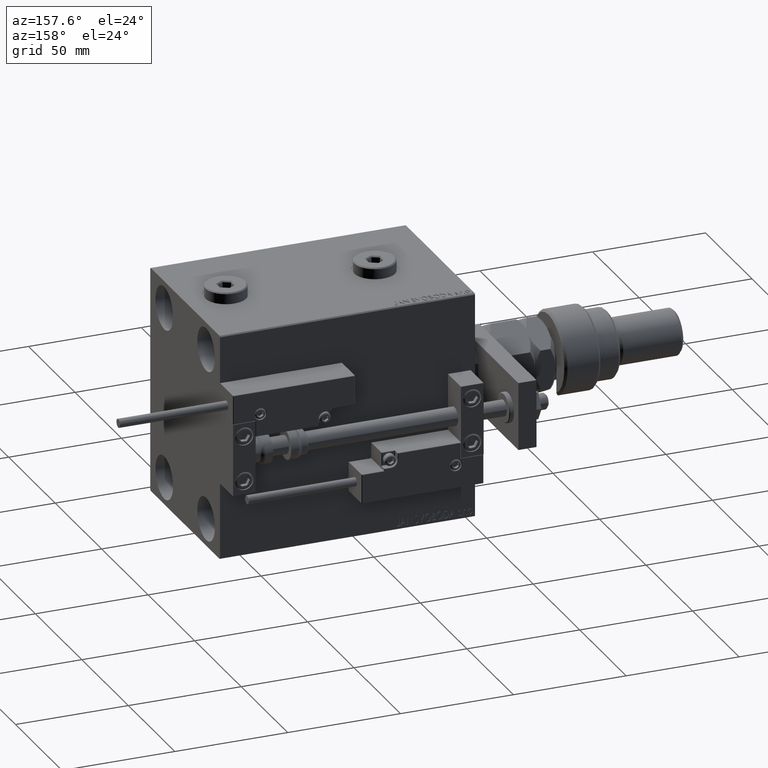
[diagram: clean part render]
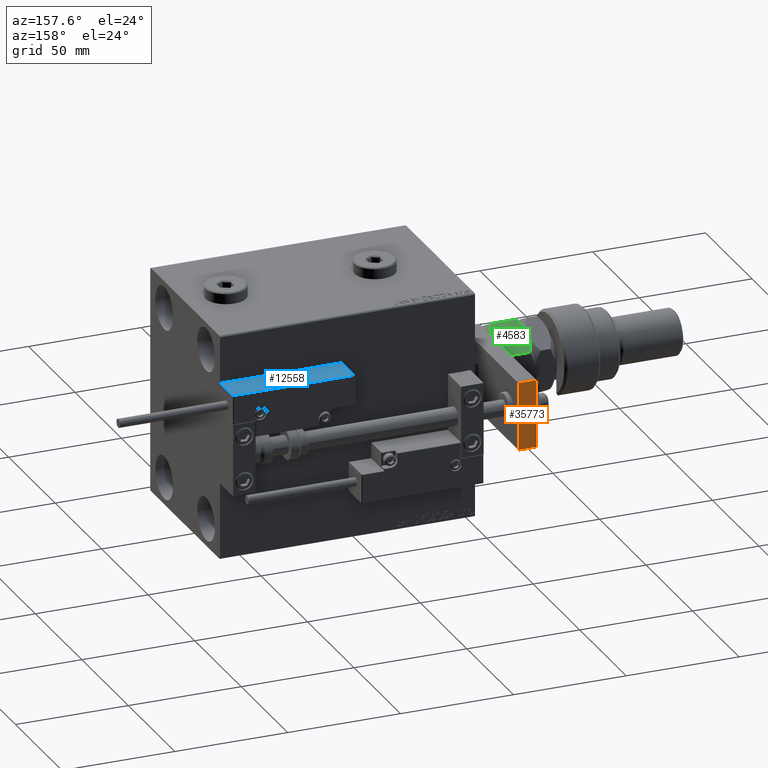
[diagram: same view with three faces highlighted in distinct colors, each labeled with its STEP entity id]
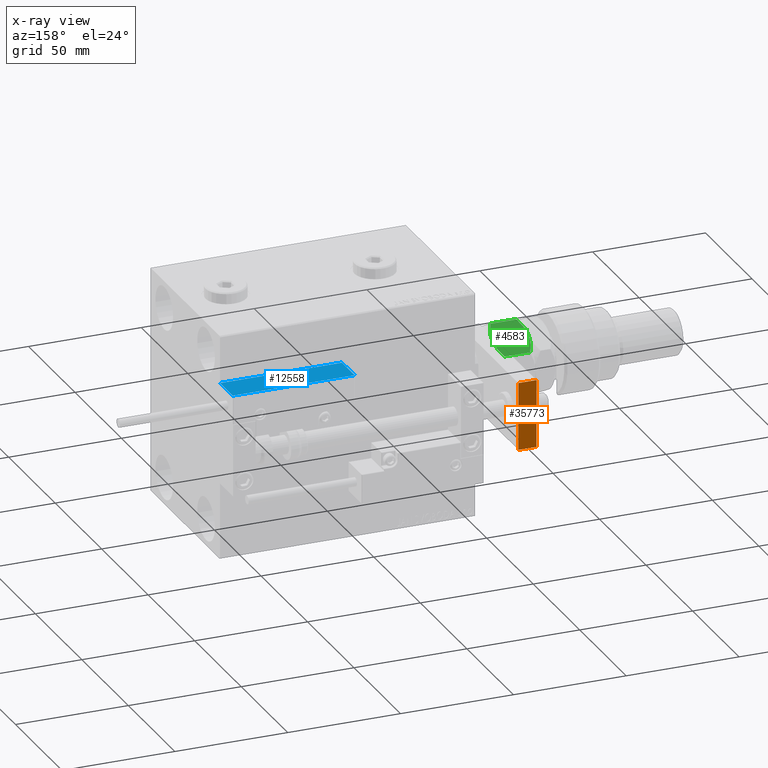
[diagram: x-ray of the same camera — body ghosted, the three highlighted faces saturated]
A machine part, auxiliary view with three faces highlighted in distinct colors.
The next image is the same camera in x-ray (body ghosted, the three faces saturated) — at least one of them is partly hidden behind the body in this view.
Their STEP definitions:

[orange] entity #35773 — the highlighted planar face has unit normal (0, -1, 0).
#2006 = CARTESIAN_POINT ( 'NONE',  ( -14.99999999999999822, 70.00000000000000000, 0.000000000000000000 ) ) ;
#2484 = AXIS2_PLACEMENT_3D ( 'NONE', #9427, #26225, #43027 ) ;
#2564 = LINE ( 'NONE', #11651, #41525 ) ;
#5326 = DIRECTION ( 'NONE',  ( -1.000000000000000000, 0.000000000000000000, 0.000000000000000000 ) ) ;
#7260 = VERTEX_POINT ( 'NONE', #18345 ) ;
#7673 = EDGE_CURVE ( 'NONE', #15833, #24005, #26277, .T. ) ;
#9427 = CARTESIAN_POINT ( 'NONE',  ( 15.00000000000000000, 70.00000000000000000, 8.000000000000000000 ) ) ;
#9678 = LINE ( 'NONE', #26475, #33267 ) ;
#11651 = CARTESIAN_POINT ( 'NONE',  ( 15.00000000000000000, 70.00000000000000000, 8.000000000000000000 ) ) ;
#13297 = ORIENTED_EDGE ( 'NONE', *, *, #47712, .F. ) ;
#13548 = FACE_OUTER_BOUND ( 'NONE', #39210, .T. ) ;
#14995 = ORIENTED_EDGE ( 'NONE', *, *, #51996, .T. ) ;
#15833 = VERTEX_POINT ( 'NONE', #18454 ) ;
#18345 = CARTESIAN_POINT ( 'NONE',  ( 15.00000000000000000, 70.00000000000000000, 8.000000000000000000 ) ) ;
#18454 = CARTESIAN_POINT ( 'NONE',  ( 15.00000000000000000, 70.00000000000000000, 0.000000000000000000 ) ) ;
#23601 = LINE ( 'NONE', #40418, #39081 ) ;
#24005 = VERTEX_POINT ( 'NONE', #2006 ) ;
#26225 = DIRECTION ( 'NONE',  ( 0.000000000000000000, -1.000000000000000000, 0.000000000000000000 ) ) ;
#26277 = LINE ( 'NONE', #43072, #26419 ) ;
#26419 = VECTOR ( 'NONE', #5326, 1000.000000000000000 ) ;
#26475 = CARTESIAN_POINT ( 'NONE',  ( -14.99999999999999822, 70.00000000000000000, 8.000000000000000000 ) ) ;
#28103 = EDGE_CURVE ( 'NONE', #46358, #24005, #9678, .T. ) ;
#28279 = DIRECTION ( 'NONE',  ( -0.000000000000000000, -0.000000000000000000, -1.000000000000000000 ) ) ;
#30730 = CARTESIAN_POINT ( 'NONE',  ( -14.99999999999999822, 70.00000000000000000, 8.000000000000000000 ) ) ;
#33267 = VECTOR ( 'NONE', #43264, 1000.000000000000000 ) ;
#35773 = ADVANCED_FACE ( 'NONE', ( #13548 ), #47151, .F. ) ;
#36318 = ORIENTED_EDGE ( 'NONE', *, *, #28103, .F. ) ;
#39081 = VECTOR ( 'NONE', #28279, 1000.000000000000000 ) ;
#39210 = EDGE_LOOP ( 'NONE', ( #40222, #36318, #13297, #14995 ) ) ;
#40222 = ORIENTED_EDGE ( 'NONE', *, *, #7673, .T. ) ;
#40418 = CARTESIAN_POINT ( 'NONE',  ( 15.00000000000000000, 70.00000000000000000, 8.000000000000000000 ) ) ;
#41525 = VECTOR ( 'NONE', #49114, 1000.000000000000000 ) ;
#43027 = DIRECTION ( 'NONE',  ( 0.000000000000000000, -0.000000000000000000, -1.000000000000000000 ) ) ;
#43072 = CARTESIAN_POINT ( 'NONE',  ( 15.00000000000000000, 70.00000000000000000, 0.000000000000000000 ) ) ;
#43264 = DIRECTION ( 'NONE',  ( -0.000000000000000000, -0.000000000000000000, -1.000000000000000000 ) ) ;
#46358 = VERTEX_POINT ( 'NONE', #30730 ) ;
#47151 = PLANE ( 'NONE',  #2484 ) ;
#47712 = EDGE_CURVE ( 'NONE', #7260, #46358, #2564, .T. ) ;
#49114 = DIRECTION ( 'NONE',  ( -1.000000000000000000, 0.000000000000000000, 0.000000000000000000 ) ) ;
#51996 = EDGE_CURVE ( 'NONE', #7260, #15833, #23601, .T. ) ;

[blue] entity #12558 — the highlighted planar face has unit normal (-0, -0, -1).
#1051 = VERTEX_POINT ( 'NONE', #2283 ) ;
#1842 = FACE_OUTER_BOUND ( 'NONE', #34027, .T. ) ;
#2283 = CARTESIAN_POINT ( 'NONE',  ( -26.99999999999993605, 20.00000000000002132, 0.000000000000000000 ) ) ;
#4034 = VECTOR ( 'NONE', #43125, 1000.000000000000000 ) ;
#5723 = ORIENTED_EDGE ( 'NONE', *, *, #46029, .F. ) ;
#7051 = CARTESIAN_POINT ( 'NONE',  ( -26.99999999999993605, 20.00000000000002132, 13.70000000000000107 ) ) ;
#8323 = LINE ( 'NONE', #28716, #45896 ) ;
#10813 = CARTESIAN_POINT ( 'NONE',  ( 27.00000000000006395, 20.00000000000001776, 13.70000000000000107 ) ) ;
#11026 = EDGE_CURVE ( 'NONE', #37381, #54164, #8323, .T. ) ;
#12558 = ADVANCED_FACE ( 'NONE', ( #1842 ), #18645, .F. ) ;
#13381 = CARTESIAN_POINT ( 'NONE',  ( 27.00000000000006395, 20.00000000000001776, 0.000000000000000000 ) ) ;
#13728 = VECTOR ( 'NONE', #34309, 1000.000000000000000 ) ;
#14472 = LINE ( 'NONE', #13381, #4034 ) ;
#18645 = PLANE ( 'NONE',  #31003 ) ;
#19878 = CARTESIAN_POINT ( 'NONE',  ( -26.99999999999993605, 20.00000000000002132, 14.00000000000000000 ) ) ;
#21506 = CARTESIAN_POINT ( 'NONE',  ( 27.00000000000006395, 20.00000000000001776, 13.70000000000000107 ) ) ;
#22752 = EDGE_CURVE ( 'NONE', #39282, #37381, #46971, .T. ) ;
#23634 = EDGE_CURVE ( 'NONE', #54164, #1051, #14472, .T. ) ;
#27459 = DIRECTION ( 'NONE',  ( -6.424901762877063495E-17, -1.000000000000000000, 0.000000000000000000 ) ) ;
#28465 = CARTESIAN_POINT ( 'NONE',  ( 27.00000000000006395, 20.00000000000001776, 14.00000000000000000 ) ) ;
#28716 = CARTESIAN_POINT ( 'NONE',  ( 27.00000000000006395, 20.00000000000001776, 14.00000000000000000 ) ) ;
#30041 = ORIENTED_EDGE ( 'NONE', *, *, #23634, .T. ) ;
#30978 = ORIENTED_EDGE ( 'NONE', *, *, #22752, .T. ) ;
#31003 = AXIS2_PLACEMENT_3D ( 'NONE', #28465, #27459, #48124 ) ;
#34027 = EDGE_LOOP ( 'NONE', ( #5723, #30978, #52007, #30041 ) ) ;
#34309 = DIRECTION ( 'NONE',  ( 1.000000000000000000, -6.424901762877063495E-17, -0.000000000000000000 ) ) ;
#37381 = VERTEX_POINT ( 'NONE', #21506 ) ;
#37791 = DIRECTION ( 'NONE',  ( -0.000000000000000000, -0.000000000000000000, -1.000000000000000000 ) ) ;
#39282 = VERTEX_POINT ( 'NONE', #7051 ) ;
#43125 = DIRECTION ( 'NONE',  ( -1.000000000000000000, 6.424901762877062263E-17, 0.000000000000000000 ) ) ;
#45222 = LINE ( 'NONE', #19878, #52904 ) ;
#45841 = CARTESIAN_POINT ( 'NONE',  ( 27.00000000000006395, 20.00000000000001776, 0.000000000000000000 ) ) ;
#45896 = VECTOR ( 'NONE', #37791, 1000.000000000000000 ) ;
#46029 = EDGE_CURVE ( 'NONE', #39282, #1051, #45222, .T. ) ;
#46971 = LINE ( 'NONE', #10813, #13728 ) ;
#48124 = DIRECTION ( 'NONE',  ( 1.000000000000000000, -6.424901762877063495E-17, 0.000000000000000000 ) ) ;
#52007 = ORIENTED_EDGE ( 'NONE', *, *, #11026, .T. ) ;
#52904 = VECTOR ( 'NONE', #53511, 1000.000000000000000 ) ;
#53511 = DIRECTION ( 'NONE',  ( -0.000000000000000000, -0.000000000000000000, -1.000000000000000000 ) ) ;
#54164 = VERTEX_POINT ( 'NONE', #45841 ) ;

[green] entity #4583 — the highlighted planar face has unit normal (-0, -0.5, -0.866).
#827 = ORIENTED_EDGE ( 'NONE', *, *, #47547, .F. ) ;
#1495 = DIRECTION ( 'NONE',  ( -0.4999999999999997780, -0.8660254037844388186, 0.000000000000000000 ) ) ;
#2599 = B_SPLINE_CURVE_WITH_KNOTS ( 'NONE', 3,
 ( #37376, #23908, #19766, #49517, #33254, #11520, #28313, #45113 ),
 .UNSPECIFIED., .F., .F.,
 ( 4, 2, 2, 4 ),
 ( 2.544309033652185071E-07, 0.004488823491893902638, 0.006733108022389172782, 0.008977392552884443794 ),
 .UNSPECIFIED. ) ;
#2968 = CARTESIAN_POINT ( 'NONE',  ( 7.500000000000000000, 12.99038105676657651, 16.00000000000000000 ) ) ;
#3218 = VERTEX_POINT ( 'NONE', #22835 ) ;
#4084 = EDGE_CURVE ( 'NONE', #19771, #35854, #7190, .T. ) ;
#4583 = ADVANCED_FACE ( 'NONE', ( #39513 ), #18576, .F. ) ;
#7190 = LINE ( 'NONE', #36660, #28880 ) ;
#7791 = B_SPLINE_CURVE_WITH_KNOTS ( 'NONE', 3,
 ( #2968, #20030, #32166, #48968, #11235, #53663 ),
 .UNSPECIFIED., .F., .F.,
 ( 4, 2, 4 ),
 ( 0.008977392552884448998, 0.01343452311421656706, 0.01789165367554868338 ),
 .UNSPECIFIED. ) ;
#10140 = CARTESIAN_POINT ( 'NONE',  ( 13.82525345580783949, 9.338494271363313004, 1.642267842169781833 ) ) ;
#11107 = CARTESIAN_POINT ( 'NONE',  ( 10.75222765045651663, 11.11270654730956586, 15.55242859148697576 ) ) ;
#11161 = B_SPLINE_CURVE_WITH_KNOTS ( 'NONE', 3,
 ( #52989, #15235, #24038, #11107, #52721, #40309, #27904, #15790 ),
 .UNSPECIFIED., .F., .F.,
 ( 4, 2, 2, 4 ),
 ( 2.544309033641602453E-07, 0.004488823491893906975, 0.006733108022389177119, 0.008977392552884448998 ),
 .UNSPECIFIED. ) ;
#11235 = CARTESIAN_POINT ( 'NONE',  ( 1.174746544192161846, 16.64226784216984356, 14.35773215783022572 ) ) ;
#11520 = CARTESIAN_POINT ( 'NONE',  ( 6.176419610670692784, 13.75455055083996214, 0.05953537397470201609 ) ) ;
#11981 = DIRECTION ( 'NONE',  ( -0.000000000000000000, -0.000000000000000000, -1.000000000000000000 ) ) ;
#12656 = ORIENTED_EDGE ( 'NONE', *, *, #33480, .F. ) ;
#13250 = ORIENTED_EDGE ( 'NONE', *, *, #40141, .T. ) ;
#13952 = CARTESIAN_POINT ( 'NONE',  ( 15.00000000000000000, 8.660254037844389075, 2.320508075688765715 ) ) ;
#15235 = CARTESIAN_POINT ( 'NONE',  ( 13.82389157469336283, 9.339280553791368789, 14.35851844025821400 ) ) ;
#15790 = CARTESIAN_POINT ( 'NONE',  ( 7.500000000000000000, 12.99038105676657651, 16.00000000000000000 ) ) ;
#15853 = LINE ( 'NONE', #31823, #37820 ) ;
#18037 = EDGE_CURVE ( 'NONE', #38704, #42883, #53966, .T. ) ;
#18120 = CARTESIAN_POINT ( 'NONE',  ( 10.08691881950258740, 11.49682277995505331, 0.2303299219392160591 ) ) ;
#18312 = AXIS2_PLACEMENT_3D ( 'NONE', #39239, #1495, #31780 ) ;
#18576 = PLANE ( 'NONE',  #18312 ) ;
#19766 = CARTESIAN_POINT ( 'NONE',  ( 2.378834511187503331, 15.94708733029709080, 1.064486067744004671 ) ) ;
#19771 = VERTEX_POINT ( 'NONE', #43317 ) ;
#20030 = CARTESIAN_POINT ( 'NONE',  ( 6.195449321423087241, 13.74356374221446764, 16.00000000000000355 ) ) ;
#22528 = CARTESIAN_POINT ( 'NONE',  ( 7.499999999999997335, 12.99038105676658184, 0.000000000000000000 ) ) ;
#22835 = CARTESIAN_POINT ( 'NONE',  ( 7.500000000000000000, 12.99038105676657651, 16.00000000000000000 ) ) ;
#23908 = CARTESIAN_POINT ( 'NONE',  ( 1.176108425306640504, 16.64148155974179843, 1.641481559741787111 ) ) ;
#24038 = CARTESIAN_POINT ( 'NONE',  ( 12.62116548881249756, 10.03367478323606221, 14.93551393225599710 ) ) ;
#24882 = EDGE_CURVE ( 'NONE', #36725, #3218, #11161, .T. ) ;
#27904 = CARTESIAN_POINT ( 'NONE',  ( 8.156876182308252510, 12.61113341608665728, 16.00000000000000355 ) ) ;
#28313 = CARTESIAN_POINT ( 'NONE',  ( 6.843123817691747490, 13.36962869744650639, -3.557538378468061917E-16 ) ) ;
#28880 = VECTOR ( 'NONE', #45184, 1000.000000000000000 ) ;
#31591 = CARTESIAN_POINT ( 'NONE',  ( 8.804550678576910983, 12.23719837131869426, -5.031375706690542042E-16 ) ) ;
#31780 = DIRECTION ( 'NONE',  ( 0.8660254037844387076, -0.4999999999999997224, 0.000000000000000000 ) ) ;
#31823 = CARTESIAN_POINT ( 'NONE',  ( 15.00000000000000000, 8.660254037844389075, 16.00000000000000000 ) ) ;
#32166 = CARTESIAN_POINT ( 'NONE',  ( 4.913081180497409939, 14.48393933357810504, 15.76967007806078946 ) ) ;
#33254 = CARTESIAN_POINT ( 'NONE',  ( 4.881674457977373649, 14.50207201327941320, 0.2838026619462936107 ) ) ;
#33480 = EDGE_CURVE ( 'NONE', #35854, #38704, #2599, .T. ) ;
#34571 = CARTESIAN_POINT ( 'NONE',  ( 15.00000000000000000, 8.660254037844389075, 13.67949192431123784 ) ) ;
#35189 = ORIENTED_EDGE ( 'NONE', *, *, #4084, .F. ) ;
#35854 = VERTEX_POINT ( 'NONE', #37734 ) ;
#36660 = CARTESIAN_POINT ( 'NONE',  ( 0.000000000000000000, 17.32050807568877104, 16.00000000000000000 ) ) ;
#36725 = VERTEX_POINT ( 'NONE', #34571 ) ;
#37376 = CARTESIAN_POINT ( 'NONE',  ( 7.621669386706803087E-17, 17.32050807568877104, 2.320508075688761718 ) ) ;
#37734 = CARTESIAN_POINT ( 'NONE',  ( 7.621669386706803087E-17, 17.32050807568877104, 2.320508075688761718 ) ) ;
#37820 = VECTOR ( 'NONE', #11981, 1000.000000000000000 ) ;
#38704 = VERTEX_POINT ( 'NONE', #54001 ) ;
#39239 = CARTESIAN_POINT ( 'NONE',  ( 15.00000000000000000, 8.660254037844389075, 16.00000000000000000 ) ) ;
#39513 = FACE_OUTER_BOUND ( 'NONE', #50900, .T. ) ;
#40141 = EDGE_CURVE ( 'NONE', #36725, #42883, #15853, .T. ) ;
#40309 = CARTESIAN_POINT ( 'NONE',  ( 8.823580389329306328, 12.22621156269319798, 15.94046462602529957 ) ) ;
#42883 = VERTEX_POINT ( 'NONE', #13952 ) ;
#43317 = CARTESIAN_POINT ( 'NONE',  ( 3.803331551779305683E-16, 17.32050807568877104, 13.67949192431124317 ) ) ;
#44536 = CARTESIAN_POINT ( 'NONE',  ( 15.00000000000000000, 8.660254037844389075, 2.320508075688765715 ) ) ;
#45113 = CARTESIAN_POINT ( 'NONE',  ( 7.499999999999997335, 12.99038105676658184, 0.000000000000000000 ) ) ;
#45184 = DIRECTION ( 'NONE',  ( -0.000000000000000000, -0.000000000000000000, -1.000000000000000000 ) ) ;
#47547 = EDGE_CURVE ( 'NONE', #3218, #19771, #7791, .T. ) ;
#48968 = CARTESIAN_POINT ( 'NONE',  ( 2.383929548160350631, 15.94414570932928576, 14.93952096862913059 ) ) ;
#49517 = CARTESIAN_POINT ( 'NONE',  ( 4.247772349543482484, 14.86805556622358893, 0.4475714085130255149 ) ) ;
#49642 = ORIENTED_EDGE ( 'NONE', *, *, #18037, .F. ) ;
#50840 = ORIENTED_EDGE ( 'NONE', *, *, #24882, .F. ) ;
#50900 = EDGE_LOOP ( 'NONE', ( #12656, #35189, #827, #50840, #13250, #49642 ) ) ;
#52544 = CARTESIAN_POINT ( 'NONE',  ( 12.61607045183964715, 10.03661640420386902, 1.060479031370879843 ) ) ;
#52721 = CARTESIAN_POINT ( 'NONE',  ( 10.11832554202262457, 11.47869010025374514, 15.71619733805371411 ) ) ;
#52989 = CARTESIAN_POINT ( 'NONE',  ( 15.00000000000000000, 8.660254037844389075, 13.67949192431123784 ) ) ;
#53663 = CARTESIAN_POINT ( 'NONE',  ( 3.803331551779305683E-16, 17.32050807568877104, 13.67949192431124317 ) ) ;
#53966 = B_SPLINE_CURVE_WITH_KNOTS ( 'NONE', 3,
 ( #22528, #31591, #18120, #52544, #10140, #44536 ),
 .UNSPECIFIED., .F., .F.,
 ( 4, 2, 4 ),
 ( 0.008977392552884443794, 0.01343452311421656532, 0.01789165367554868685 ),
 .UNSPECIFIED. ) ;
#54001 = CARTESIAN_POINT ( 'NONE',  ( 7.499999999999997335, 12.99038105676658184, 0.000000000000000000 ) ) ;